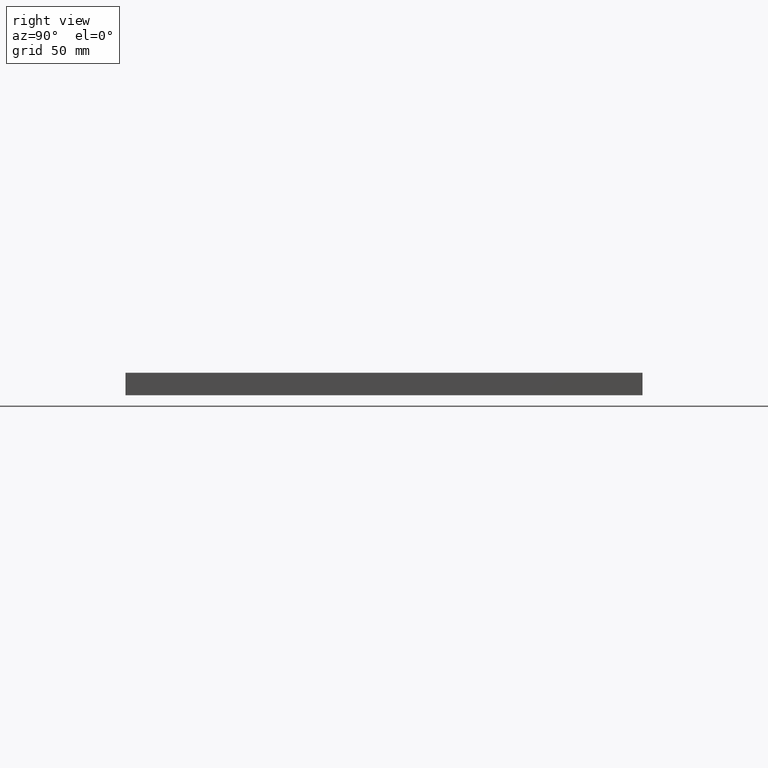
[diagram: clean part render]
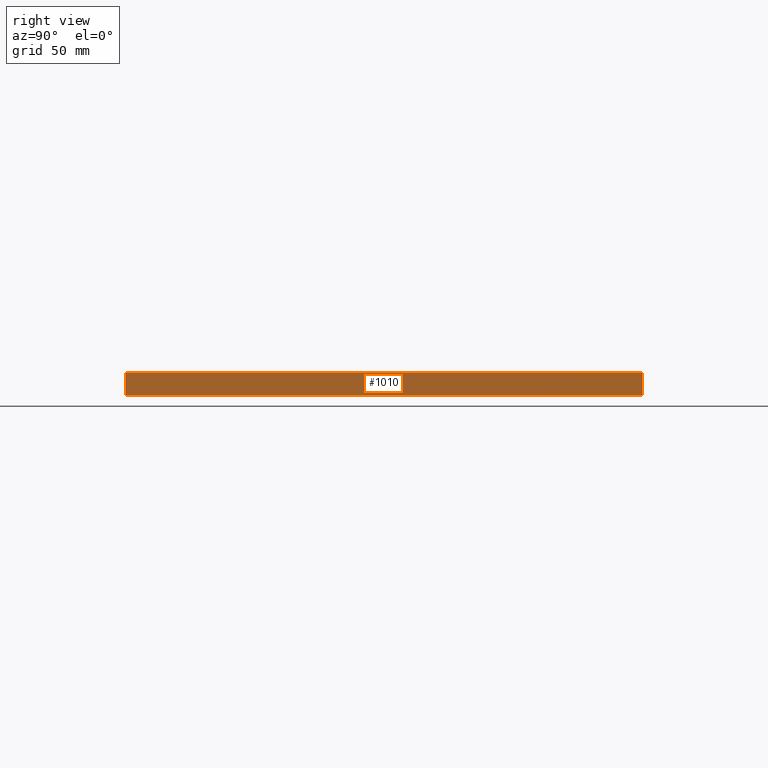
[diagram: same view with one face highlighted and labeled with its STEP entity id]
A machine part, right view. The second image highlights one B-rep face of the part: STEP entity #1010.
In plain terms, the highlighted planar face has unit normal (-1, -0, 0).
Its self-contained STEP definition (entity closure, byte-faithful):
#232 = AXIS2_PLACEMENT_3D ( 'NONE', #6303, #7465, #3975 ) ;
#290 = ORIENTED_EDGE ( 'NONE', *, *, #6327, .T. ) ;
#565 = VECTOR ( 'NONE', #5826, 1000.000000000000000 ) ;
#596 = EDGE_CURVE ( 'NONE', #3407, #2499, #3685, .T. ) ;
#640 = DIRECTION ( 'NONE',  ( -0.0000000000000000000, -0.0000000000000000000, -1.000000000000000000 ) ) ;
#1010 = ADVANCED_FACE ( 'NONE', ( #2847 ), #4540, .F. ) ;
#1300 = LINE ( 'NONE', #3442, #7137 ) ;
#1350 = ORIENTED_EDGE ( 'NONE', *, *, #5492, .T. ) ;
#1525 = CARTESIAN_POINT ( 'NONE',  ( 150.0000000000000300, -150.0000000000000300, 0.0000000000000000000 ) ) ;
#1990 = VECTOR ( 'NONE', #640, 1000.000000000000000 ) ;
#2499 = VERTEX_POINT ( 'NONE', #3452 ) ;
#2842 = EDGE_CURVE ( 'NONE', #2499, #3996, #1300, .T. ) ;
#2847 = FACE_OUTER_BOUND ( 'NONE', #3188, .T. ) ;
#2901 = CARTESIAN_POINT ( 'NONE',  ( 150.0000000000000000, 149.9999999999999700, 13.00000000000000000 ) ) ;
#2993 = CARTESIAN_POINT ( 'NONE',  ( 150.0000000000000300, -150.0000000000000300, 13.00000000000000000 ) ) ;
#3188 = EDGE_LOOP ( 'NONE', ( #1350, #5312, #7189, #290 ) ) ;
#3407 = VERTEX_POINT ( 'NONE', #4709 ) ;
#3442 = CARTESIAN_POINT ( 'NONE',  ( 150.0000000000000000, 149.9999999999999700, 13.00000000000000000 ) ) ;
#3452 = CARTESIAN_POINT ( 'NONE',  ( 150.0000000000000000, 149.9999999999999700, 13.00000000000000000 ) ) ;
#3685 = LINE ( 'NONE', #2901, #565 ) ;
#3975 = DIRECTION ( 'NONE',  ( 9.251858538542974000E-017, -1.000000000000000000, 0.0000000000000000000 ) ) ;
#3996 = VERTEX_POINT ( 'NONE', #6270 ) ;
#4285 = VECTOR ( 'NONE', #6548, 1000.000000000000000 ) ;
#4540 = PLANE ( 'NONE',  #232 ) ;
#4709 = CARTESIAN_POINT ( 'NONE',  ( 150.0000000000000300, -150.0000000000000300, 13.00000000000000000 ) ) ;
#5303 = LINE ( 'NONE', #2993, #1990 ) ;
#5312 = ORIENTED_EDGE ( 'NONE', *, *, #2842, .F. ) ;
#5377 = CARTESIAN_POINT ( 'NONE',  ( 150.0000000000000000, 149.9999999999999700, 0.0000000000000000000 ) ) ;
#5492 = EDGE_CURVE ( 'NONE', #6824, #3996, #7376, .T. ) ;
#5826 = DIRECTION ( 'NONE',  ( -9.251858538542971600E-017, 1.000000000000000000, -0.0000000000000000000 ) ) ;
#6270 = CARTESIAN_POINT ( 'NONE',  ( 150.0000000000000000, 149.9999999999999700, 0.0000000000000000000 ) ) ;
#6303 = CARTESIAN_POINT ( 'NONE',  ( 150.0000000000000000, 149.9999999999999700, 13.00000000000000000 ) ) ;
#6327 = EDGE_CURVE ( 'NONE', #3407, #6824, #5303, .T. ) ;
#6548 = DIRECTION ( 'NONE',  ( -9.251858538542971600E-017, 1.000000000000000000, -0.0000000000000000000 ) ) ;
#6824 = VERTEX_POINT ( 'NONE', #1525 ) ;
#7137 = VECTOR ( 'NONE', #7527, 1000.000000000000000 ) ;
#7189 = ORIENTED_EDGE ( 'NONE', *, *, #596, .F. ) ;
#7376 = LINE ( 'NONE', #5377, #4285 ) ;
#7465 = DIRECTION ( 'NONE',  ( -1.000000000000000000, -9.251858538542974000E-017, 0.0000000000000000000 ) ) ;
#7527 = DIRECTION ( 'NONE',  ( -0.0000000000000000000, -0.0000000000000000000, -1.000000000000000000 ) ) ;